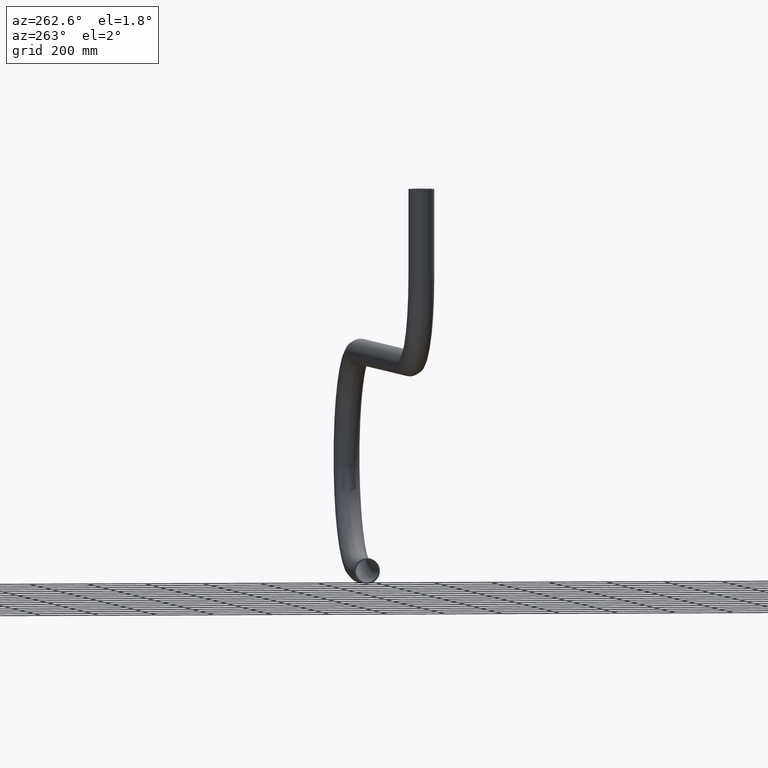
[diagram: clean part render]
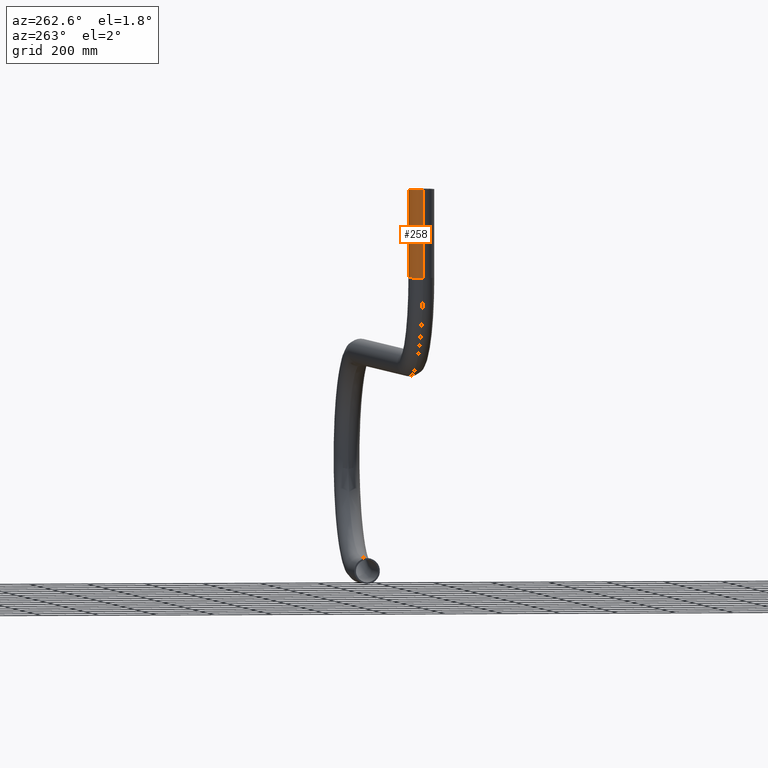
[diagram: same view with one face highlighted and labeled with its STEP entity id]
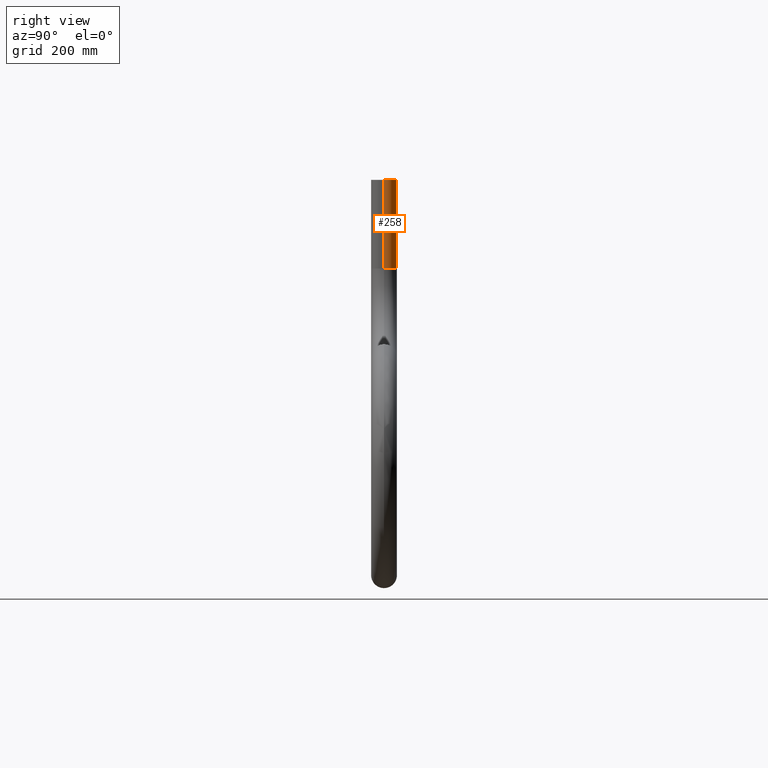
[diagram: same view with one face highlighted and labeled with its STEP entity id]
A machine part, auxiliary view. The second image highlights one B-rep face of the part: STEP entity #258.
A second angle (right view) of the same face is appended — the face is thin or edge-on in the first view.
In plain terms, the highlighted cylindrical surface (edge-blend (fillet) strip) has radius 44.45 mm, axis along (-0, -0, 1).
Its self-contained STEP definition (entity closure, byte-faithful):
#13 = CARTESIAN_POINT ( 'NONE',  ( -964.5000000000000000, 0.000000000000000000, 305.0000000000001137 ) ) ;
#15 = AXIS2_PLACEMENT_3D ( 'NONE', #13, #403, #414 ) ;
#29 = CARTESIAN_POINT ( 'NONE',  ( -920.0500000000000682, 0.000000000000000000, 305.0000000000001137 ) ) ;
#42 = AXIS2_PLACEMENT_3D ( 'NONE', #619, #227, #176 ) ;
#46 = EDGE_CURVE ( 'NONE', #404, #261, #394, .T. ) ;
#63 = AXIS2_PLACEMENT_3D ( 'NONE', #645, #334, #177 ) ;
#83 = CARTESIAN_POINT ( 'NONE',  ( -1008.950000000000045, 5.443555022209988853E-15, 305.0000000000001137 ) ) ;
#106 = VECTOR ( 'NONE', #372, 1000.000000000000000 ) ;
#113 = VERTEX_POINT ( 'NONE', #430 ) ;
#144 = EDGE_CURVE ( 'NONE', #261, #366, #482, .T. ) ;
#176 = DIRECTION ( 'NONE',  ( -1.000000000000000000, 0.000000000000000000, 0.000000000000000000 ) ) ;
#177 = DIRECTION ( 'NONE',  ( -1.000000000000000000, 0.000000000000000000, 0.000000000000000000 ) ) ;
#227 = DIRECTION ( 'NONE',  ( -2.465190328815661892E-32, 0.000000000000000000, -1.000000000000000000 ) ) ;
#232 = DIRECTION ( 'NONE',  ( -0.000000000000000000, -0.000000000000000000, 1.000000000000000000 ) ) ;
#250 = ORIENTED_EDGE ( 'NONE', *, *, #445, .T. ) ;
#258 = ADVANCED_FACE ( 'NONE', ( #510 ), #552, .T. ) ;
#261 = VERTEX_POINT ( 'NONE', #514 ) ;
#334 = DIRECTION ( 'NONE',  ( -2.465190328815661892E-32, 0.000000000000000000, -1.000000000000000000 ) ) ;
#363 = ORIENTED_EDGE ( 'NONE', *, *, #400, .T. ) ;
#366 = VERTEX_POINT ( 'NONE', #422 ) ;
#372 = DIRECTION ( 'NONE',  ( -0.000000000000000000, -0.000000000000000000, 1.000000000000000000 ) ) ;
#394 = CIRCLE ( 'NONE', #63, 44.44999999999998863 ) ;
#400 = EDGE_CURVE ( 'NONE', #404, #113, #530, .T. ) ;
#403 = DIRECTION ( 'NONE',  ( -0.000000000000000000, -0.000000000000000000, 1.000000000000000000 ) ) ;
#404 = VERTEX_POINT ( 'NONE', #83 ) ;
#414 = DIRECTION ( 'NONE',  ( 1.000000000000000000, 0.000000000000000000, 0.000000000000000000 ) ) ;
#422 = CARTESIAN_POINT ( 'NONE',  ( -920.0500000000000682, 0.000000000000000000, 609.9999999999998863 ) ) ;
#430 = CARTESIAN_POINT ( 'NONE',  ( -1008.950000000000045, 5.443555022209988853E-15, 609.9999999999998863 ) ) ;
#445 = EDGE_CURVE ( 'NONE', #113, #366, #516, .T. ) ;
#473 = EDGE_LOOP ( 'NONE', ( #504, #363, #250, #574 ) ) ;
#482 = LINE ( 'NONE', #29, #571 ) ;
#504 = ORIENTED_EDGE ( 'NONE', *, *, #46, .F. ) ;
#510 = FACE_OUTER_BOUND ( 'NONE', #473, .T. ) ;
#514 = CARTESIAN_POINT ( 'NONE',  ( -920.0500000000000682, 0.000000000000000000, 305.0000000000001137 ) ) ;
#516 = CIRCLE ( 'NONE', #42, 44.44999999999998863 ) ;
#519 = CARTESIAN_POINT ( 'NONE',  ( -1008.950000000000045, 5.443555022209986486E-15, 305.0000000000001137 ) ) ;
#530 = LINE ( 'NONE', #519, #106 ) ;
#552 = CYLINDRICAL_SURFACE ( 'NONE', #15, 44.44999999999998863 ) ;
#571 = VECTOR ( 'NONE', #232, 1000.000000000000000 ) ;
#574 = ORIENTED_EDGE ( 'NONE', *, *, #144, .F. ) ;
#619 = CARTESIAN_POINT ( 'NONE',  ( -964.5000000000000000, 0.000000000000000000, 609.9999999999998863 ) ) ;
#645 = CARTESIAN_POINT ( 'NONE',  ( -964.5000000000000000, 0.000000000000000000, 305.0000000000001137 ) ) ;